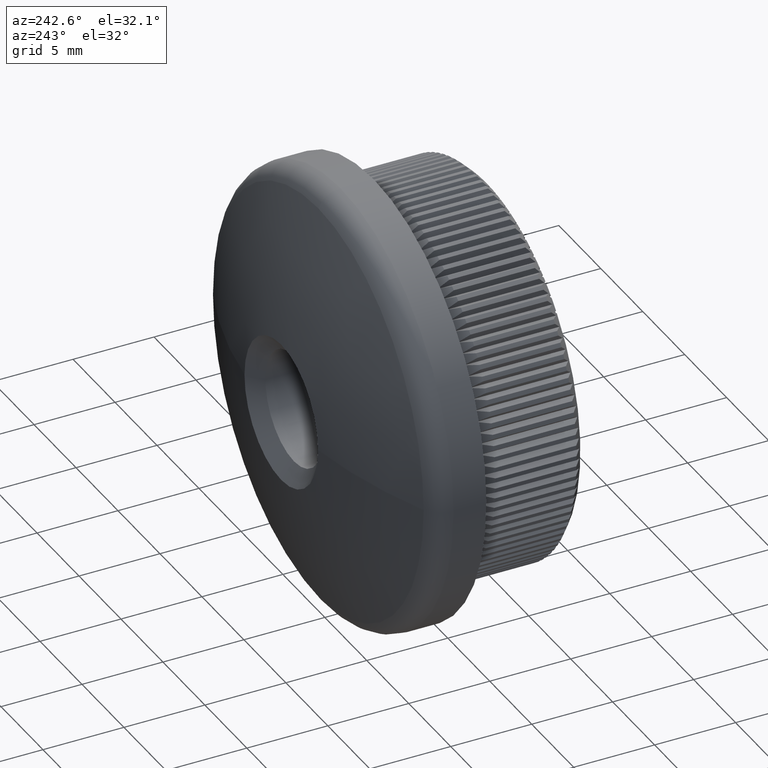
[diagram: clean part render]
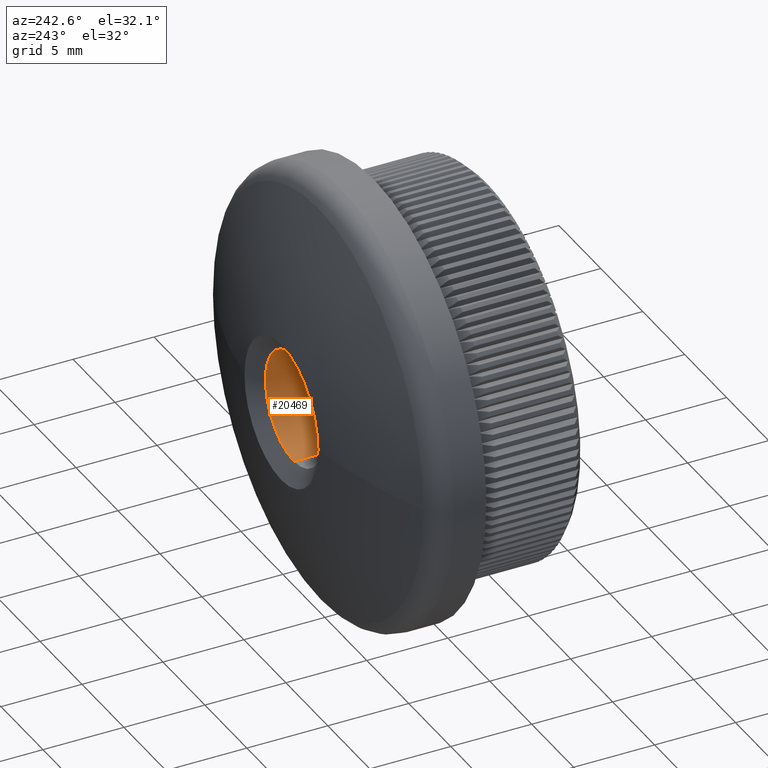
[diagram: same view with one face highlighted and labeled with its STEP entity id]
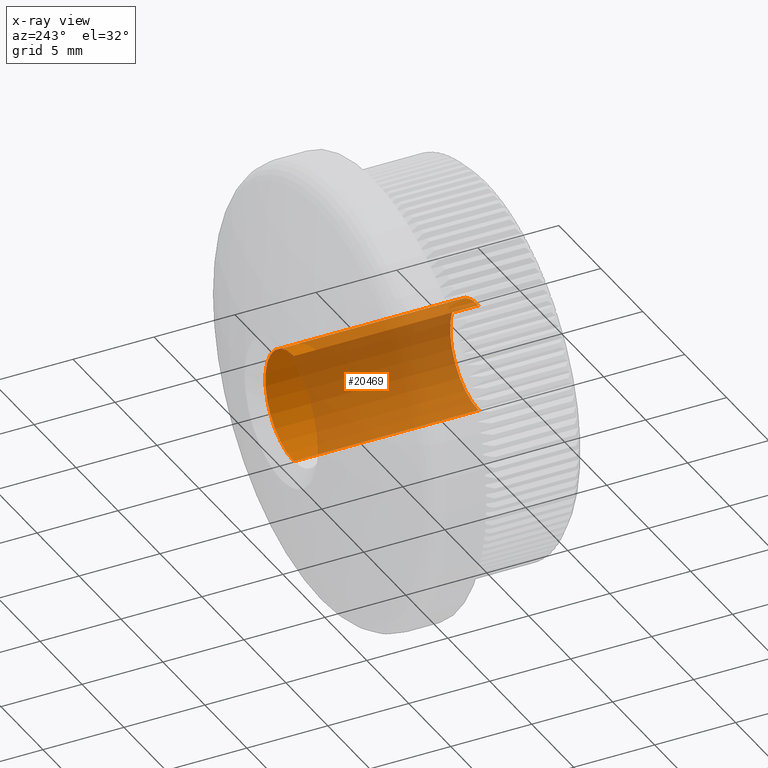
[diagram: x-ray of the same camera — body ghosted, the highlighted face saturated]
A machine part, auxiliary view. The second image highlights one B-rep face of the part: STEP entity #20469.
The next image is the same camera in x-ray: the body ghosted, the highlighted face saturated — about 81% of this face is hidden behind the body in this view.
In plain terms, the highlighted cylindrical surface (partial cylindrical patch) has radius 3.4 mm, axis along (-0, -1, -0).
Its self-contained STEP definition (entity closure, byte-faithful):
#487 = FACE_OUTER_BOUND ( 'NONE', #12743, .T. ) ;
#1199 = VERTEX_POINT ( 'NONE', #6286 ) ;
#2099 = EDGE_CURVE ( 'NONE', #2470, #1199, #15921, .T. ) ;
#2470 = VERTEX_POINT ( 'NONE', #9957 ) ;
#2688 = DIRECTION ( 'NONE',  ( 0.0000000000000000000, 0.0000000000000000000, 1.000000000000000000 ) ) ;
#3263 = DIRECTION ( 'NONE',  ( 0.0000000000000000000, 0.0000000000000000000, -1.000000000000000000 ) ) ;
#3397 = DIRECTION ( 'NONE',  ( -0.0000000000000000000, -1.000000000000000000, -0.0000000000000000000 ) ) ;
#4959 = VECTOR ( 'NONE', #3397, 1000.000000000000000 ) ;
#6286 = CARTESIAN_POINT ( 'NONE',  ( 4.163799117100995600E-016, 0.4999999999999961100, 3.399999999999995500 ) ) ;
#7272 = VERTEX_POINT ( 'NONE', #11675 ) ;
#7304 = CARTESIAN_POINT ( 'NONE',  ( 4.163799117100995600E-016, 0.0000000000000000000, 3.399999999999995500 ) ) ;
#7467 = AXIS2_PLACEMENT_3D ( 'NONE', #8159, #16217, #3263 ) ;
#8155 = VECTOR ( 'NONE', #17048, 1000.000000000000000 ) ;
#8159 = CARTESIAN_POINT ( 'NONE',  ( 0.0000000000000000000, 0.0000000000000000000, 0.0000000000000000000 ) ) ;
#8543 = VERTEX_POINT ( 'NONE', #10502 ) ;
#8868 = CARTESIAN_POINT ( 'NONE',  ( 0.0000000000000000000, 0.4999999999999961100, 0.0000000000000000000 ) ) ;
#9511 = ORIENTED_EDGE ( 'NONE', *, *, #19000, .T. ) ;
#9743 = AXIS2_PLACEMENT_3D ( 'NONE', #8868, #12167, #13699 ) ;
#9957 = CARTESIAN_POINT ( 'NONE',  ( 4.163799117100995600E-016, 11.90910994499173200, 3.399999999999995500 ) ) ;
#10502 = CARTESIAN_POINT ( 'NONE',  ( 0.0000000000000000000, 0.4999999999999961100, -3.399999999999995500 ) ) ;
#11675 = CARTESIAN_POINT ( 'NONE',  ( 0.0000000000000000000, 11.90910994499173200, -3.399999999999995500 ) ) ;
#11785 = CIRCLE ( 'NONE', #9743, 3.399999999999995500 ) ;
#12167 = DIRECTION ( 'NONE',  ( 0.0000000000000000000, -1.000000000000000000, 0.0000000000000000000 ) ) ;
#12743 = EDGE_LOOP ( 'NONE', ( #17763, #16298, #14411, #9511 ) ) ;
#13010 = LINE ( 'NONE', #16009, #4959 ) ;
#13699 = DIRECTION ( 'NONE',  ( 0.0000000000000000000, 0.0000000000000000000, -1.000000000000000000 ) ) ;
#13814 = CARTESIAN_POINT ( 'NONE',  ( 0.0000000000000000000, 11.90910994499173200, 0.0000000000000000000 ) ) ;
#14018 = DIRECTION ( 'NONE',  ( 0.0000000000000000000, 1.000000000000000000, 0.0000000000000000000 ) ) ;
#14411 = ORIENTED_EDGE ( 'NONE', *, *, #20482, .T. ) ;
#15921 = LINE ( 'NONE', #7304, #8155 ) ;
#16009 = CARTESIAN_POINT ( 'NONE',  ( 0.0000000000000000000, 0.0000000000000000000, -3.399999999999995500 ) ) ;
#16217 = DIRECTION ( 'NONE',  ( -0.0000000000000000000, -1.000000000000000000, -0.0000000000000000000 ) ) ;
#16298 = ORIENTED_EDGE ( 'NONE', *, *, #19616, .T. ) ;
#17048 = DIRECTION ( 'NONE',  ( -0.0000000000000000000, -1.000000000000000000, -0.0000000000000000000 ) ) ;
#17258 = AXIS2_PLACEMENT_3D ( 'NONE', #13814, #14018, #2688 ) ;
#17763 = ORIENTED_EDGE ( 'NONE', *, *, #2099, .F. ) ;
#18279 = CYLINDRICAL_SURFACE ( 'NONE', #7467, 3.399999999999995500 ) ;
#19000 = EDGE_CURVE ( 'NONE', #8543, #1199, #11785, .T. ) ;
#19616 = EDGE_CURVE ( 'NONE', #2470, #7272, #19785, .T. ) ;
#19785 = CIRCLE ( 'NONE', #17258, 3.399999999999995500 ) ;
#20469 = ADVANCED_FACE ( 'NONE', ( #487 ), #18279, .F. ) ;
#20482 = EDGE_CURVE ( 'NONE', #7272, #8543, #13010, .T. ) ;